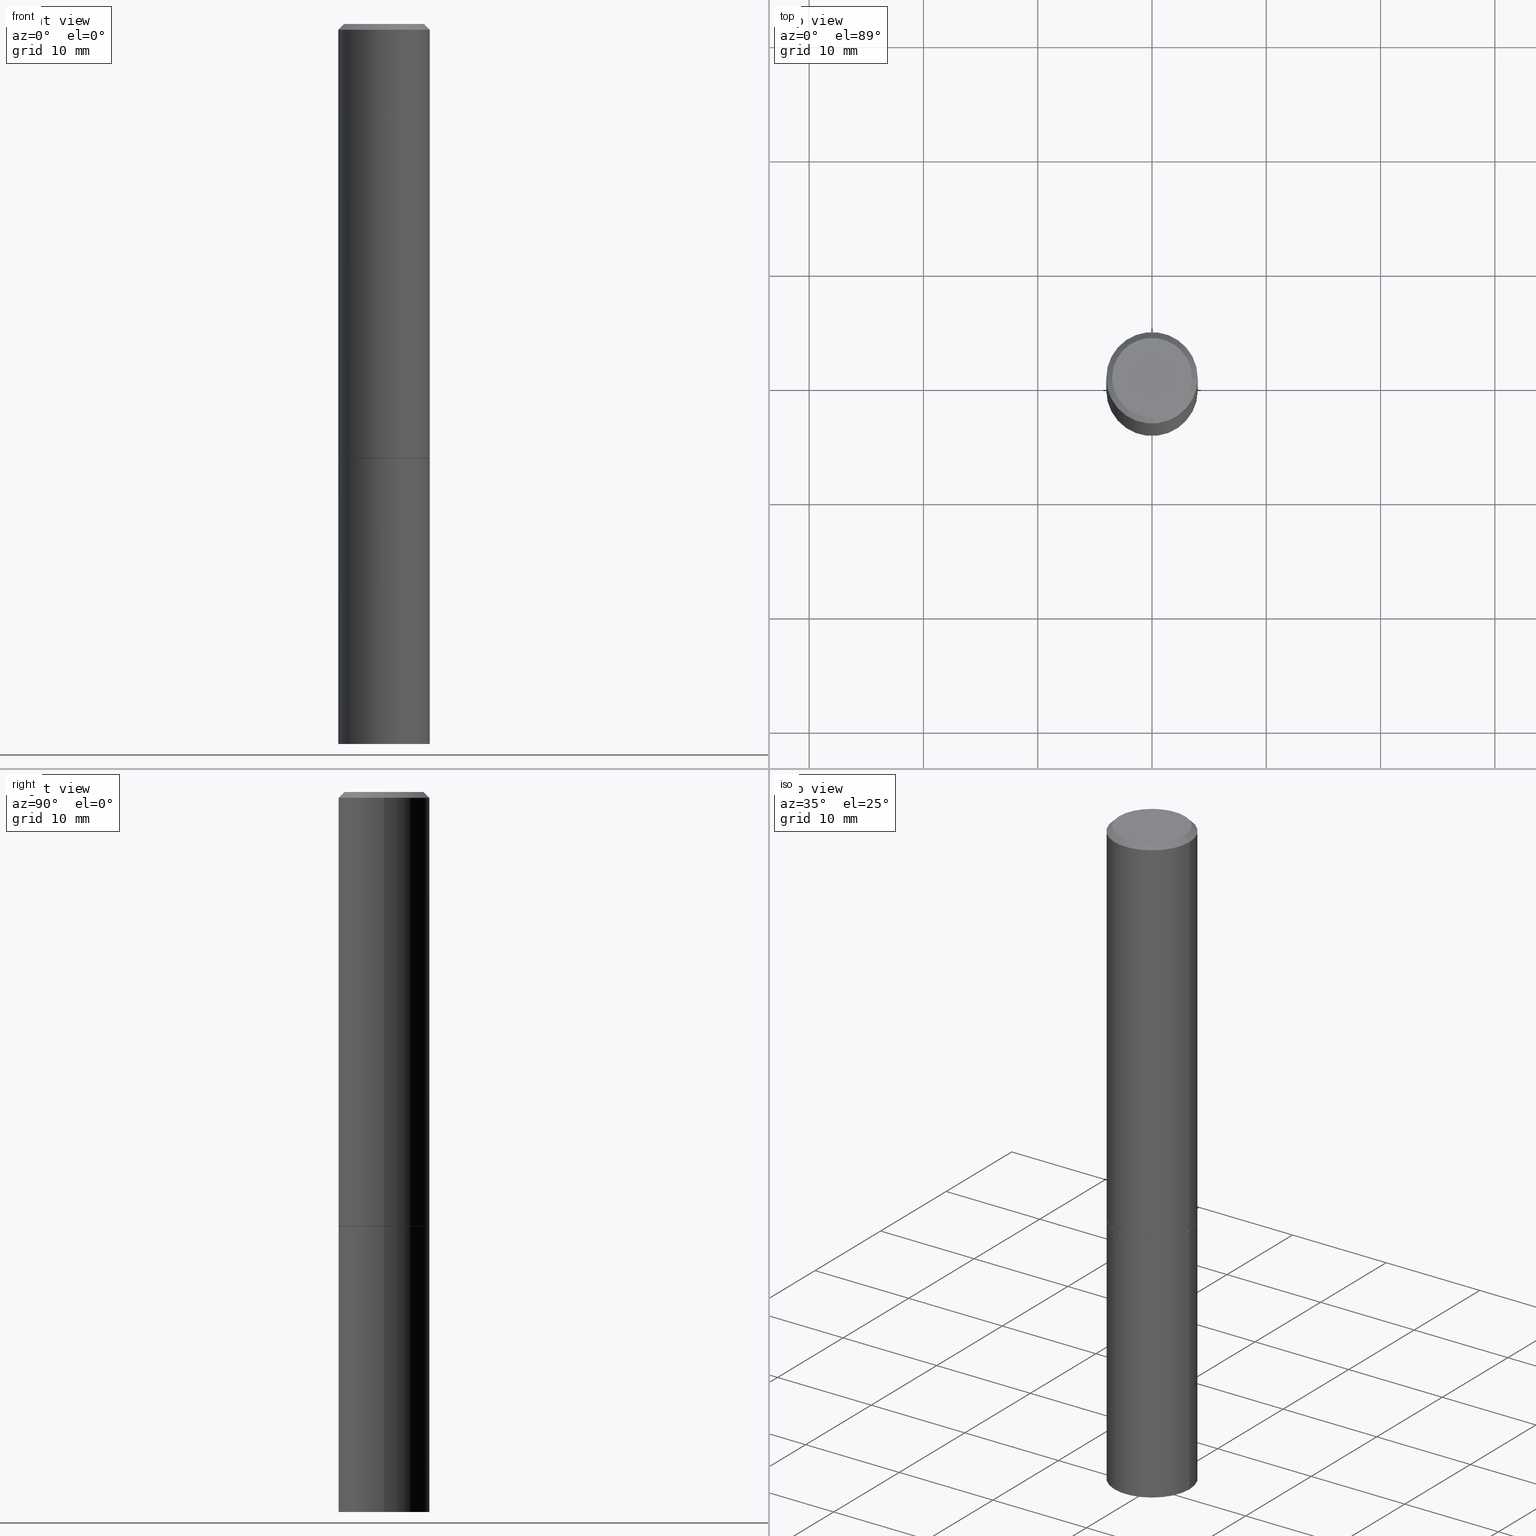
[diagram: canonical four-view strip — front | top / right | iso, engineering-drawing reading convention]
A machine part, canonical four-view strip (front | top / right | iso — engineering-drawing reading convention). The complete STEP part file that produces these views, byte-faithful:
ISO-10303-21;
HEADER;
FILE_DESCRIPTION (( 'STEP AP203' ),
    '1' );
FILE_NAME ('82968.STEP',
    '2024-02-29T19:28:35',
    ( '' ),
    ( '' ),
    'SwSTEP 2.0',
    'SolidWorks 2023',
    '' );
FILE_SCHEMA (( 'CONFIG_CONTROL_DESIGN' ));
ENDSEC;

DATA;
#1 = ORIENTED_EDGE ( 'NONE', *, *, #342, .F. ) ;
#2 = APPROVAL_PERSON_ORGANIZATION ( #61, #335, #258 ) ;
#3 = ADVANCED_FACE ( 'NONE', ( #218 ), #29, .T. ) ;
#4 = CALENDAR_DATE ( 2024, 29, 2 ) ;
#5 = CARTESIAN_POINT ( 'NONE',  ( 1.099816621735623373E-15, 0.1574999999999947553, -1.496000000000000885 ) ) ;
#6 = ORIENTED_EDGE ( 'NONE', *, *, #168, .T. ) ;
#7 = PERSON_AND_ORGANIZATION_ROLE ( 'design_supplier' ) ;
#8 = EDGE_CURVE ( 'NONE', #208, #77, #256, .T. ) ;
#9 = DATE_TIME_ROLE ( 'creation_date' ) ;
#10 = SECURITY_CLASSIFICATION ( '', '', #222 ) ;
#11 = DIRECTION ( 'NONE',  ( -2.445468806185136597E-29, 3.491481338843145583E-15, 1.000000000000000000 ) ) ;
#12 = DIRECTION ( 'NONE',  ( -2.445468806185136877E-29, 3.491481338843145188E-15, 1.000000000000000000 ) ) ;
#13 = AXIS2_PLACEMENT_3D ( 'NONE', #237, #212, #291 ) ;
#14 = APPROVAL ( #195, 'UNSPECIFIED' ) ;
#15 = ORIENTED_EDGE ( 'NONE', *, *, #119, .T. ) ;
#16 = CARTESIAN_POINT ( 'NONE',  ( 3.658421334052965846E-29, -5.223256082909347726E-15, -1.496000000000000663 ) ) ;
#17 = ORIENTED_EDGE ( 'NONE', *, *, #128, .F. ) ;
#18 = CC_DESIGN_PERSON_AND_ORGANIZATION_ASSIGNMENT ( #233, #255, ( #278 ) ) ;
#19 = CYLINDRICAL_SURFACE ( 'NONE', #295, 0.1574999999999998901 ) ;
#20 = PRODUCT ( '82968', '82968', '', ( #216 ) ) ;
#21 = APPROVAL_PERSON_ORGANIZATION ( #73, #205, #275 ) ;
#22 = VERTEX_POINT ( 'NONE', #106 ) ;
#23 = UNCERTAINTY_MEASURE_WITH_UNIT (LENGTH_MEASURE( 1.000000000000000082E-05 ), #65, 'distance_accuracy_value', 'NONE');
#24 = CARTESIAN_POINT ( 'NONE',  ( 0.000000000000000000, 0.000000000000000000, 0.000000000000000000 ) ) ;
#25 = VERTEX_POINT ( 'NONE', #79 ) ;
#26 = AXIS2_PLACEMENT_3D ( 'NONE', #320, #286, #173 ) ;
#27 = DIRECTION ( 'NONE',  ( -2.445468806185136597E-29, 3.491481338843145583E-15, 1.000000000000000000 ) ) ;
#28 = CC_DESIGN_APPROVAL ( #14, ( #109 ) ) ;
#29 = CYLINDRICAL_SURFACE ( 'NONE', #229, 0.1575000000000000011 ) ;
#30 = EDGE_CURVE ( 'NONE', #331, #243, #254, .T. ) ;
#31 = CONICAL_SURFACE ( 'NONE', #59, 0.1574999999999998346, 0.7853981633974471688 ) ;
#32 = LOCAL_TIME ( 14, 28, 35.00000000000000000, #288 ) ;
#33 = DIRECTION ( 'NONE',  ( 1.000000000000000000, -6.982962677686266711E-15, 4.876176775795935793E-29 ) ) ;
#34 = CARTESIAN_POINT ( 'NONE',  ( -0.1374999999999998446, 9.950721815702915469E-16, 8.537024980193986277E-18 ) ) ;
#35 = EDGE_CURVE ( 'NONE', #131, #22, #326, .T. ) ;
#36 = CARTESIAN_POINT ( 'NONE',  ( 3.658421334052965286E-29, -5.223256082909346937E-15, -1.496000000000000441 ) ) ;
#37 = AXIS2_PLACEMENT_3D ( 'NONE', #150, #299, #48 ) ;
#38 = DIRECTION ( 'NONE',  ( -2.445468806185136877E-29, 3.491481338843145188E-15, 1.000000000000000000 ) ) ;
#39 = PERSON_AND_ORGANIZATION_ROLE ( 'creator' ) ;
#40 = LINE ( 'NONE', #89, #124 ) ;
#41 = FACE_OUTER_BOUND ( 'NONE', #98, .T. ) ;
#42 = CC_DESIGN_PERSON_AND_ORGANIZATION_ASSIGNMENT ( #227, #341, ( #10 ) ) ;
#43 = CARTESIAN_POINT ( 'NONE',  ( 4.890937612370281041E-31, -6.982962677686302702E-17, -0.02000000000000003511 ) ) ;
#44 = CARTESIAN_POINT ( 'NONE',  ( 0.1575000000000000011, -6.323072704644934417E-15, -1.496000000000000441 ) ) ;
#45 = ORIENTED_EDGE ( 'NONE', *, *, #265, .T. ) ;
#46 = CARTESIAN_POINT ( 'NONE',  ( 0.1574999999999998901, -1.099816621735586297E-15, 7.679978421878593829E-30 ) ) ;
#47 = ADVANCED_FACE ( 'NONE', ( #200 ), #203, .F. ) ;
#48 = DIRECTION ( 'NONE',  ( 1.000000000000000000, -6.982962677686268288E-15, 0.000000000000000000 ) ) ;
#49 = ORIENTED_EDGE ( 'NONE', *, *, #30, .T. ) ;
#50 = FACE_OUTER_BOUND ( 'NONE', #274, .T. ) ;
#51 = APPLICATION_CONTEXT ( 'configuration controlled 3d designs of mechanical parts and assemblies' ) ;
#52 = ORIENTED_EDGE ( 'NONE', *, *, #35, .T. ) ;
#53 = EDGE_LOOP ( 'NONE', ( #362, #70, #1, #188 ) ) ;
#54 = CARTESIAN_POINT ( 'NONE',  ( -2.087702828670439639E-46, 2.980686340760894400E-32, 8.537024980200822558E-18 ) ) ;
#55 = LOCAL_TIME ( 14, 28, 35.00000000000000000, #318 ) ;
#56 = CC_DESIGN_DATE_AND_TIME_ASSIGNMENT ( #164, #284, ( #10 ) ) ;
#57 = PERSON_AND_ORGANIZATION ( #235, #186 ) ;
#58 = ORIENTED_EDGE ( 'NONE', *, *, #128, .T. ) ;
#59 = AXIS2_PLACEMENT_3D ( 'NONE', #148, #333, #155 ) ;
#60 =( GEOMETRIC_REPRESENTATION_CONTEXT ( 3 ) GLOBAL_UNCERTAINTY_ASSIGNED_CONTEXT ( ( #23 ) ) GLOBAL_UNIT_ASSIGNED_CONTEXT ( ( #65, #329, #351 ) ) REPRESENTATION_CONTEXT ( 'NONE', 'WORKASPACE' ) );
#61 = PERSON_AND_ORGANIZATION ( #235, #186 ) ;
#62 = CARTESIAN_POINT ( 'NONE',  ( 3.655975865246779683E-29, -5.219764601570503930E-15, -1.495000000000000329 ) ) ;
#63 = CIRCLE ( 'NONE', #204, 0.1575000000000000011 ) ;
#64 = CALENDAR_DATE ( 2024, 29, 2 ) ;
#65 =( CONVERSION_BASED_UNIT ( 'INCH', #261 ) LENGTH_UNIT ( ) NAMED_UNIT ( #158 ) );
#66 = CARTESIAN_POINT ( 'NONE',  ( 0.1565000000000000002, -6.316089741967248403E-15, -1.496000000000000663 ) ) ;
#67 = ORIENTED_EDGE ( 'NONE', *, *, #81, .T. ) ;
#68 = EDGE_CURVE ( 'NONE', #301, #131, #146, .T. ) ;
#69 = VERTEX_POINT ( 'NONE', #317 ) ;
#70 = ORIENTED_EDGE ( 'NONE', *, *, #107, .T. ) ;
#71 = CARTESIAN_POINT ( 'NONE',  ( 0.1574999999999998346, -1.150358061425878091E-15, -0.02000000000000003511 ) ) ;
#72 = ORIENTED_EDGE ( 'NONE', *, *, #342, .T. ) ;
#73 = PERSON_AND_ORGANIZATION ( #235, #186 ) ;
#74 = CONICAL_SURFACE ( 'NONE', #140, 0.1565000000000000002, 0.7853981633972775267 ) ;
#75 = AXIS2_PLACEMENT_3D ( 'NONE', #271, #206, #125 ) ;
#76 = CARTESIAN_POINT ( 'NONE',  ( 4.890937612370281041E-31, -6.982962677686302702E-17, -0.02000000000000003511 ) ) ;
#77 = VERTEX_POINT ( 'NONE', #34 ) ;
#78 = EDGE_CURVE ( 'NONE', #219, #301, #293, .T. ) ;
#79 = CARTESIAN_POINT ( 'NONE',  ( -0.1574999999999998346, 1.029986994958722604E-15, -0.02000000000000003511 ) ) ;
#80 = CARTESIAN_POINT ( 'NONE',  ( -0.1574999999999998346, 1.029986994958722604E-15, -0.02000000000000003511 ) ) ;
#81 = EDGE_CURVE ( 'NONE', #96, #25, #40, .T. ) ;
#82 = CLOSED_SHELL ( 'NONE', ( #287, #292, #175, #3 ) ) ;
#83 = EDGE_LOOP ( 'NONE', ( #267, #49, #224, #123 ) ) ;
#84 = COORDINATED_UNIVERSAL_TIME_OFFSET ( 5, 0, .BEHIND. ) ;
#85 = EDGE_CURVE ( 'NONE', #22, #131, #91, .T. ) ;
#86 = CALENDAR_DATE ( 2024, 29, 2 ) ;
#87 = CARTESIAN_POINT ( 'NONE',  ( 6.065496279980994755E-29, -8.659921164732655335E-15, -2.480300000000000171 ) ) ;
#88 = DATE_AND_TIME ( #86, #32 ) ;
#89 = CARTESIAN_POINT ( 'NONE',  ( -0.1574999999999998901, 1.119104808822157012E-15, -7.747322767151471379E-30 ) ) ;
#90 = FACE_OUTER_BOUND ( 'NONE', #298, .T. ) ;
#91 = CIRCLE ( 'NONE', #177, 0.1575000000000000011 ) ;
#92 = FACE_OUTER_BOUND ( 'NONE', #121, .T. ) ;
#93 = EDGE_CURVE ( 'NONE', #96, #69, #63, .T. ) ;
#94 = DIRECTION ( 'NONE',  ( -2.445468806185136597E-29, 3.491481338843145583E-15, 1.000000000000000000 ) ) ;
#95 = MANIFOLD_SOLID_BREP ( 'Body-Move/Copy2[2]', #244 ) ;
#96 = VERTEX_POINT ( 'NONE', #152 ) ;
#97 = DIRECTION ( 'NONE',  ( 1.000000000000000000, -6.982962677686265922E-15, 4.876176775795935793E-29 ) ) ;
#98 = EDGE_LOOP ( 'NONE', ( #6, #151, #211, #101 ) ) ;
#99 = CARTESIAN_POINT ( 'NONE',  ( -0.1565000000000000002, -4.105958247096567940E-15, -1.496000000000000663 ) ) ;
#100 = CARTESIAN_POINT ( 'NONE',  ( -0.1565000000000000002, -4.111256701444791131E-15, -1.496000000000000663 ) ) ;
#101 = ORIENTED_EDGE ( 'NONE', *, *, #68, .F. ) ;
#102 = ORIENTED_EDGE ( 'NONE', *, *, #68, .T. ) ;
#103 = AXIS2_PLACEMENT_3D ( 'NONE', #187, #294, #300 ) ;
#104 = CONICAL_SURFACE ( 'NONE', #270, 0.1565000000000000002, 0.7853981633972775267 ) ;
#105 = EDGE_LOOP ( 'NONE', ( #311, #328, #102, #183 ) ) ;
#106 = CARTESIAN_POINT ( 'NONE',  ( -0.1575000000000000011, -5.822483814998842744E-15, -1.496000000000000441 ) ) ;
#107 = EDGE_CURVE ( 'NONE', #331, #96, #213, .T. ) ;
#108 = DIRECTION ( 'NONE',  ( 1.000000000000000000, -6.982962677686267499E-15, 0.000000000000000000 ) ) ;
#109 = PRODUCT_DEFINITION_FORMATION_WITH_SPECIFIED_SOURCE ( 'ANY', '', #20, .NOT_KNOWN. ) ;
#110 = DATE_AND_TIME ( #4, #55 ) ;
#111 = ADVANCED_FACE ( 'NONE', ( #323 ), #31, .T. ) ;
#112 = AXIS2_PLACEMENT_3D ( 'NONE', #257, #225, #260 ) ;
#113 = LOCAL_TIME ( 14, 28, 35.00000000000000000, #142 ) ;
#114 = DIRECTION ( 'NONE',  ( 1.000000000000000000, -6.982962677686261977E-15, 0.000000000000000000 ) ) ;
#115 = ADVANCED_FACE ( 'NONE', ( #242 ), #74, .T. ) ;
#116 = DIRECTION ( 'NONE',  ( -2.445468806185136597E-29, 3.491481338843145583E-15, 1.000000000000000000 ) ) ;
#117 = AXIS2_PLACEMENT_3D ( 'NONE', #5, #170, #259 ) ;
#118 = DIRECTION ( 'NONE',  ( -2.445468806185136597E-29, 3.491481338843145583E-15, 1.000000000000000000 ) ) ;
#119 = EDGE_CURVE ( 'NONE', #153, #25, #160, .T. ) ;
#120 = DIRECTION ( 'NONE',  ( 2.438088387897960049E-29, -3.491481338843145188E-15, -1.000000000000000000 ) ) ;
#121 = EDGE_LOOP ( 'NONE', ( #249, #272, #15, #364 ) ) ;
#122 = LINE ( 'NONE', #66, #171 ) ;
#123 = ORIENTED_EDGE ( 'NONE', *, *, #93, .F. ) ;
#124 = VECTOR ( 'NONE', #38, 39.37007874015748143 ) ;
#125 = DIRECTION ( 'NONE',  ( 1.000000000000000000, -6.982962677686265922E-15, 0.000000000000000000 ) ) ;
#126 = DIRECTION ( 'NONE',  ( -0.7071067811864267805, 7.493145998869918709E-15, 0.7071067811866682540 ) ) ;
#127 = CARTESIAN_POINT ( 'NONE',  ( 0.1565000000000000002, -6.316089741967248403E-15, -1.496000000000000663 ) ) ;
#128 = EDGE_CURVE ( 'NONE', #77, #208, #280, .T. ) ;
#129 = ORIENTED_EDGE ( 'NONE', *, *, #78, .F. ) ;
#130 = DIRECTION ( 'NONE',  ( -0.7071067811865466846, 2.468850131082247989E-15, -0.7071067811865483499 ) ) ;
#131 = VERTEX_POINT ( 'NONE', #44 ) ;
#132 = CIRCLE ( 'NONE', #282, 0.1575000000000000011 ) ;
#133 = DIRECTION ( 'NONE',  ( 1.000000000000000000, -6.982962677686265922E-15, 4.876173381029105647E-29 ) ) ;
#134 = EDGE_CURVE ( 'NONE', #77, #25, #207, .T. ) ;
#135 = AXIS2_PLACEMENT_3D ( 'NONE', #307, #194, #336 ) ;
#136 = APPROVAL_STATUS ( 'not_yet_approved' ) ;
#137 = ADVANCED_FACE ( 'NONE', ( #310 ), #104, .T. ) ;
#138 = DIRECTION ( 'NONE',  ( 1.000000000000000000, -6.982962677686261977E-15, 0.000000000000000000 ) ) ;
#139 = DIRECTION ( 'NONE',  ( 1.000000000000000000, -6.982962677686268288E-15, 0.000000000000000000 ) ) ;
#140 = AXIS2_PLACEMENT_3D ( 'NONE', #357, #248, #354 ) ;
#141 = LOCAL_TIME ( 14, 28, 35.00000000000000000, #84 ) ;
#142 = COORDINATED_UNIVERSAL_TIME_OFFSET ( 5, 0, .BEHIND. ) ;
#143 = CARTESIAN_POINT ( 'NONE',  ( 0.000000000000000000, 0.000000000000000000, 0.000000000000000000 ) ) ;
#144 = DESIGN_CONTEXT ( 'detailed design', #51, 'design' ) ;
#145 = CC_DESIGN_PERSON_AND_ORGANIZATION_ASSIGNMENT ( #338, #163, ( #20 ) ) ;
#146 = LINE ( 'NONE', #349, #184 ) ;
#147 = CARTESIAN_POINT ( 'NONE',  ( 1.099816621735647434E-15, 0.1574999999999913136, -2.480300000000001059 ) ) ;
#148 = CARTESIAN_POINT ( 'NONE',  ( 4.890937612370281041E-31, -6.982962677686302702E-17, -0.02000000000000003511 ) ) ;
#149 = EDGE_LOOP ( 'NONE', ( #52, #268 ) ) ;
#150 = CARTESIAN_POINT ( 'NONE',  ( 3.655975865246779683E-29, -5.219764601570503930E-15, -1.495000000000000329 ) ) ;
#151 = ORIENTED_EDGE ( 'NONE', *, *, #303, .T. ) ;
#152 = CARTESIAN_POINT ( 'NONE',  ( -0.1575000000000000011, -1.525692305351524236E-15, -1.495000000000000329 ) ) ;
#153 = VERTEX_POINT ( 'NONE', #221 ) ;
#154 = PRODUCT_DEFINITION_SHAPE ( 'NONE', 'NONE',  #278 ) ;
#155 = DIRECTION ( 'NONE',  ( -1.000000000000000000, 6.982962677686265922E-15, 0.000000000000000000 ) ) ;
#156 = ORIENTED_EDGE ( 'NONE', *, *, #199, .F. ) ;
#157 = ORIENTED_EDGE ( 'NONE', *, *, #30, .F. ) ;
#158 = DIMENSIONAL_EXPONENTS ( 1.000000000000000000, 0.000000000000000000, 0.000000000000000000, 0.000000000000000000, 0.000000000000000000, 0.000000000000000000, 0.000000000000000000 ) ;
#159 = EDGE_CURVE ( 'NONE', #243, #331, #337, .T. ) ;
#160 = CIRCLE ( 'NONE', #339, 0.1574999999999998346 ) ;
#161 = CALENDAR_DATE ( 2024, 29, 2 ) ;
#162 = CARTESIAN_POINT ( 'NONE',  ( 3.658421334052965846E-29, -5.223256082909347726E-15, -1.496000000000000663 ) ) ;
#163 = PERSON_AND_ORGANIZATION_ROLE ( 'design_owner' ) ;
#164 = DATE_AND_TIME ( #313, #141 ) ;
#165 = ADVANCED_FACE ( 'NONE', ( #365 ), #196, .T. ) ;
#166 = AXIS2_PLACEMENT_3D ( 'NONE', #16, #245, #97 ) ;
#167 = DIRECTION ( 'NONE',  ( -2.445468806185136597E-29, 3.491481338843145583E-15, 1.000000000000000000 ) ) ;
#168 = EDGE_CURVE ( 'NONE', #301, #219, #132, .T. ) ;
#169 = APPROVAL_DATE_TIME ( #110, #335 ) ;
#170 = DIRECTION ( 'NONE',  ( 2.438088387897960049E-29, -3.491481338843145188E-15, -1.000000000000000000 ) ) ;
#171 = VECTOR ( 'NONE', #210, 39.37007874015748143 ) ;
#172 = APPROVAL_ROLE ( '' ) ;
#173 = DIRECTION ( 'NONE',  ( -1.000000000000000000, 6.982962677686265922E-15, -4.876176775795935793E-29 ) ) ;
#174 = CYLINDRICAL_SURFACE ( 'NONE', #13, 0.1575000000000000011 ) ;
#175 = ADVANCED_FACE ( 'NONE', ( #234 ), #231, .F. ) ;
#176 = ORIENTED_EDGE ( 'NONE', *, *, #265, .F. ) ;
#177 = AXIS2_PLACEMENT_3D ( 'NONE', #36, #167, #139 ) ;
#178 = LOCAL_TIME ( 14, 28, 35.00000000000000000, #305 ) ;
#179 = CARTESIAN_POINT ( 'NONE',  ( -0.1575000000000000011, 1.119104808822157801E-15, -7.747322767151475583E-30 ) ) ;
#180 = ORIENTED_EDGE ( 'NONE', *, *, #93, .T. ) ;
#181 = DIRECTION ( 'NONE',  ( -1.000000000000000000, 6.982962677686265922E-15, 0.000000000000000000 ) ) ;
#182 = CC_DESIGN_PERSON_AND_ORGANIZATION_ASSIGNMENT ( #281, #7, ( #109 ) ) ;
#183 = ORIENTED_EDGE ( 'NONE', *, *, #85, .F. ) ;
#184 = VECTOR ( 'NONE', #262, 39.37007874015748143 ) ;
#185 = CC_DESIGN_APPROVAL ( #205, ( #278 ) ) ;
#186 = ORGANIZATION ( 'UNSPECIFIED', 'UNSPECIFIED', '' ) ;
#187 = CARTESIAN_POINT ( 'NONE',  ( -2.087702828670439639E-46, 2.980686340760894400E-32, 8.537024980200822558E-18 ) ) ;
#188 = ORIENTED_EDGE ( 'NONE', *, *, #348, .F. ) ;
#189 = APPROVAL_STATUS ( 'not_yet_approved' ) ;
#190 = ADVANCED_FACE ( 'NONE', ( #90 ), #19, .T. ) ;
#191 = CARTESIAN_POINT ( 'NONE',  ( 0.000000000000000000, 0.000000000000000000, 0.000000000000000000 ) ) ;
#192 = AXIS2_PLACEMENT_3D ( 'NONE', #43, #322, #181 ) ;
#193 = DIRECTION ( 'NONE',  ( -2.445468806185136597E-29, 3.491481338843145583E-15, 1.000000000000000000 ) ) ;
#194 = DIRECTION ( 'NONE',  ( 0.000000000000000000, 0.000000000000000000, 1.000000000000000000 ) ) ;
#195 = APPROVAL_STATUS ( 'not_yet_approved' ) ;
#196 = CYLINDRICAL_SURFACE ( 'NONE', #277, 0.1574999999999998901 ) ;
#197 = EDGE_LOOP ( 'NONE', ( #217, #129 ) ) ;
#198 = CIRCLE ( 'NONE', #75, 0.1574999999999998346 ) ;
#199 = EDGE_CURVE ( 'NONE', #208, #153, #241, .T. ) ;
#200 = FACE_OUTER_BOUND ( 'NONE', #239, .T. ) ;
#201 = PERSON_AND_ORGANIZATION ( #235, #186 ) ;
#202 = DIRECTION ( 'NONE',  ( 1.000000000000000000, -6.982962677686268288E-15, 0.000000000000000000 ) ) ;
#203 = PLANE ( 'NONE',  #26 ) ;
#204 = AXIS2_PLACEMENT_3D ( 'NONE', #62, #11, #327 ) ;
#205 = APPROVAL ( #189, 'UNSPECIFIED' ) ;
#206 = DIRECTION ( 'NONE',  ( -2.445468806185136597E-29, 3.491481338843145583E-15, 1.000000000000000000 ) ) ;
#207 = LINE ( 'NONE', #80, #314 ) ;
#208 = VERTEX_POINT ( 'NONE', #356 ) ;
#209 = AXIS2_PLACEMENT_3D ( 'NONE', #312, #279, #223 ) ;
#210 = DIRECTION ( 'NONE',  ( 0.7071067811864267805, -2.468850131080992517E-15, 0.7071067811866682540 ) ) ;
#211 = ORIENTED_EDGE ( 'NONE', *, *, #35, .F. ) ;
#212 = DIRECTION ( 'NONE',  ( -2.445468806185136597E-29, 3.491481338843145583E-15, 1.000000000000000000 ) ) ;
#213 = LINE ( 'NONE', #100, #269 ) ;
#214 =( LENGTH_UNIT ( ) NAMED_UNIT ( * ) SI_UNIT ( $, .METRE. ) );
#215 = AXIS2_PLACEMENT_3D ( 'NONE', #147, #120, #266 ) ;
#216 = MECHANICAL_CONTEXT ( 'NONE', #346, 'mechanical' ) ;
#217 = ORIENTED_EDGE ( 'NONE', *, *, #168, .F. ) ;
#218 = FACE_OUTER_BOUND ( 'NONE', #105, .T. ) ;
#219 = VERTEX_POINT ( 'NONE', #360 ) ;
#220 = VECTOR ( 'NONE', #12, 39.37007874015748143 ) ;
#221 = CARTESIAN_POINT ( 'NONE',  ( 0.1574999999999998346, -1.150358061425878091E-15, -0.02000000000000003511 ) ) ;
#222 = SECURITY_CLASSIFICATION_LEVEL ( 'unclassified' ) ;
#223 = DIRECTION ( 'NONE',  ( 1.000000000000000000, -6.982962677686267499E-15, 0.000000000000000000 ) ) ;
#224 = ORIENTED_EDGE ( 'NONE', *, *, #348, .T. ) ;
#225 = DIRECTION ( 'NONE',  ( -2.445468806185136597E-29, 3.491481338843145583E-15, 1.000000000000000000 ) ) ;
#226 = EDGE_CURVE ( 'NONE', #25, #153, #198, .T. ) ;
#227 = PERSON_AND_ORGANIZATION ( #235, #186 ) ;
#228 = DIRECTION ( 'NONE',  ( -2.445468806185136597E-29, 3.491481338843145583E-15, 1.000000000000000000 ) ) ;
#229 = AXIS2_PLACEMENT_3D ( 'NONE', #191, #193, #306 ) ;
#230 = DATE_AND_TIME ( #64, #113 ) ;
#231 = PLANE ( 'NONE',  #117 ) ;
#232 = CARTESIAN_POINT ( 'NONE',  ( 6.065496279980994755E-29, -8.659921164732655335E-15, -2.480300000000000171 ) ) ;
#233 = PERSON_AND_ORGANIZATION ( #235, #186 ) ;
#234 = FACE_OUTER_BOUND ( 'NONE', #149, .T. ) ;
#235 = PERSON ( 'UNSPECIFIED', 'UNSPECIFIED', 'UNSPECIFIED', ('UNSPECIFIED'), ('UNSPECIFIED'), ('UNSPECIFIED') ) ;
#236 = CC_DESIGN_APPROVAL ( #335, ( #10 ) ) ;
#237 = CARTESIAN_POINT ( 'NONE',  ( 0.000000000000000000, 0.000000000000000000, 0.000000000000000000 ) ) ;
#238 = DIRECTION ( 'NONE',  ( 0.7071067811865466846, -7.319954787623252890E-15, -0.7071067811865483499 ) ) ;
#239 = EDGE_LOOP ( 'NONE', ( #58, #324 ) ) ;
#240 = ADVANCED_FACE ( 'NONE', ( #92 ), #366, .T. ) ;
#241 = LINE ( 'NONE', #71, #358 ) ;
#242 = FACE_OUTER_BOUND ( 'NONE', #83, .T. ) ;
#243 = VERTEX_POINT ( 'NONE', #127 ) ;
#244 = CLOSED_SHELL ( 'NONE', ( #137, #190, #240, #111, #165, #115, #273, #47 ) ) ;
#245 = DIRECTION ( 'NONE',  ( -2.438088387897960049E-29, 3.491481338843145188E-15, 1.000000000000000000 ) ) ;
#246 = ORIENTED_EDGE ( 'NONE', *, *, #159, .F. ) ;
#247 = CARTESIAN_POINT ( 'NONE',  ( 0.1575000000000000011, -9.759737786468242027E-15, -2.480300000000000171 ) ) ;
#248 = DIRECTION ( 'NONE',  ( -2.445468806185136597E-29, 3.491481338843145583E-15, 1.000000000000000000 ) ) ;
#249 = ORIENTED_EDGE ( 'NONE', *, *, #8, .F. ) ;
#250 = ORIENTED_EDGE ( 'NONE', *, *, #134, .T. ) ;
#251 = CC_DESIGN_PERSON_AND_ORGANIZATION_ASSIGNMENT ( #57, #39, ( #109 ) ) ;
#252 = DIRECTION ( 'NONE',  ( -2.445468806185136597E-29, 3.491481338843145583E-15, 1.000000000000000000 ) ) ;
#253 = APPLICATION_PROTOCOL_DEFINITION ( 'international standard', 'config_control_design', 1994, #51 ) ;
#254 = CIRCLE ( 'NONE', #112, 0.1565000000000000002 ) ;
#255 = PERSON_AND_ORGANIZATION_ROLE ( 'creator' ) ;
#256 = CIRCLE ( 'NONE', #285, 0.1374999999999998446 ) ;
#257 = CARTESIAN_POINT ( 'NONE',  ( 3.658421334052965846E-29, -5.223256082909347726E-15, -1.496000000000000663 ) ) ;
#258 = APPROVAL_ROLE ( '' ) ;
#259 = DIRECTION ( 'NONE',  ( -1.000000000000000000, 6.982962677686265922E-15, -4.876176775795935793E-29 ) ) ;
#260 = DIRECTION ( 'NONE',  ( 1.000000000000000000, -6.982962677686267499E-15, 0.000000000000000000 ) ) ;
#261 = LENGTH_MEASURE_WITH_UNIT ( LENGTH_MEASURE( 0.02539999999999999897 ), #214 );
#262 = DIRECTION ( 'NONE',  ( -2.445468806185136877E-29, 3.491481338843145188E-15, 1.000000000000000000 ) ) ;
#263 = APPROVAL_PERSON_ORGANIZATION ( #201, #14, #172 ) ;
#264 = EDGE_LOOP ( 'NONE', ( #359, #180, #45, #334 ) ) ;
#265 = EDGE_CURVE ( 'NONE', #69, #153, #302, .T. ) ;
#266 = DIRECTION ( 'NONE',  ( -1.000000000000000000, 6.982962677686265922E-15, -4.876176775795935793E-29 ) ) ;
#267 = ORIENTED_EDGE ( 'NONE', *, *, #107, .F. ) ;
#268 = ORIENTED_EDGE ( 'NONE', *, *, #85, .T. ) ;
#269 = VECTOR ( 'NONE', #126, 39.37007874015748143 ) ;
#270 = AXIS2_PLACEMENT_3D ( 'NONE', #162, #252, #108 ) ;
#271 = CARTESIAN_POINT ( 'NONE',  ( 4.890937612370281041E-31, -6.982962677686302702E-17, -0.02000000000000003511 ) ) ;
#272 = ORIENTED_EDGE ( 'NONE', *, *, #199, .T. ) ;
#273 = ADVANCED_FACE ( 'NONE', ( #50 ), #325, .F. ) ;
#274 = EDGE_LOOP ( 'NONE', ( #246, #157 ) ) ;
#275 = APPROVAL_ROLE ( '' ) ;
#276 = ADVANCED_BREP_SHAPE_REPRESENTATION ( '82968', ( #352, #95, #135 ), #60 ) ;
#277 = AXIS2_PLACEMENT_3D ( 'NONE', #143, #228, #33 ) ;
#278 = PRODUCT_DEFINITION ( 'UNKNOWN', '', #109, #144 ) ;
#279 = DIRECTION ( 'NONE',  ( -2.445468806185136597E-29, 3.491481338843145583E-15, 1.000000000000000000 ) ) ;
#280 = CIRCLE ( 'NONE', #103, 0.1374999999999998446 ) ;
#281 = PERSON_AND_ORGANIZATION ( #235, #186 ) ;
#282 = AXIS2_PLACEMENT_3D ( 'NONE', #87, #319, #114 ) ;
#283 = APPROVAL_DATE_TIME ( #315, #205 ) ;
#284 = DATE_TIME_ROLE ( 'classification_date' ) ;
#285 = AXIS2_PLACEMENT_3D ( 'NONE', #54, #27, #133 ) ;
#286 = DIRECTION ( 'NONE',  ( 2.438088387897960049E-29, -3.491481338843145188E-15, -1.000000000000000000 ) ) ;
#287 = ADVANCED_FACE ( 'NONE', ( #41 ), #174, .T. ) ;
#288 = COORDINATED_UNIVERSAL_TIME_OFFSET ( 5, 0, .BEHIND. ) ;
#289 = DIRECTION ( 'NONE',  ( -2.445468806185136597E-29, 3.491481338843145583E-15, 1.000000000000000000 ) ) ;
#290 = FACE_OUTER_BOUND ( 'NONE', #197, .T. ) ;
#291 = DIRECTION ( 'NONE',  ( 1.000000000000000000, -6.982962677686265922E-15, 4.876176775795935232E-29 ) ) ;
#292 = ADVANCED_FACE ( 'NONE', ( #290 ), #353, .T. ) ;
#293 = CIRCLE ( 'NONE', #344, 0.1575000000000000011 ) ;
#294 = DIRECTION ( 'NONE',  ( -2.445468806185136597E-29, 3.491481338843145583E-15, 1.000000000000000000 ) ) ;
#295 = AXIS2_PLACEMENT_3D ( 'NONE', #24, #94, #332 ) ;
#296 = ORIENTED_EDGE ( 'NONE', *, *, #119, .F. ) ;
#297 = DIRECTION ( 'NONE',  ( -2.445468806185136877E-29, 3.491481338843145188E-15, 1.000000000000000000 ) ) ;
#298 = EDGE_LOOP ( 'NONE', ( #72, #67, #296, #176 ) ) ;
#299 = DIRECTION ( 'NONE',  ( -2.445468806185136597E-29, 3.491481338843145583E-15, 1.000000000000000000 ) ) ;
#300 = DIRECTION ( 'NONE',  ( 1.000000000000000000, -6.982962677686265922E-15, 4.876173381029105647E-29 ) ) ;
#301 = VERTEX_POINT ( 'NONE', #247 ) ;
#302 = LINE ( 'NONE', #46, #220 ) ;
#303 = EDGE_CURVE ( 'NONE', #219, #22, #363, .T. ) ;
#304 = ORIENTED_EDGE ( 'NONE', *, *, #226, .T. ) ;
#305 = COORDINATED_UNIVERSAL_TIME_OFFSET ( 5, 0, .BEHIND. ) ;
#306 = DIRECTION ( 'NONE',  ( 1.000000000000000000, -6.982962677686265922E-15, 4.876176775795935232E-29 ) ) ;
#307 = CARTESIAN_POINT ( 'NONE',  ( 0.000000000000000000, 0.000000000000000000, 0.000000000000000000 ) ) ;
#308 = AXIS2_PLACEMENT_3D ( 'NONE', #347, #116, #202 ) ;
#309 = CIRCLE ( 'NONE', #37, 0.1575000000000000011 ) ;
#310 = FACE_OUTER_BOUND ( 'NONE', #53, .T. ) ;
#311 = ORIENTED_EDGE ( 'NONE', *, *, #303, .F. ) ;
#312 = CARTESIAN_POINT ( 'NONE',  ( 3.658421334052965846E-29, -5.223256082909347726E-15, -1.496000000000000663 ) ) ;
#313 = CALENDAR_DATE ( 2024, 29, 2 ) ;
#314 = VECTOR ( 'NONE', #130, 39.37007874015748143 ) ;
#315 = DATE_AND_TIME ( #161, #178 ) ;
#316 = CC_DESIGN_SECURITY_CLASSIFICATION ( #10, ( #109 ) ) ;
#317 = CARTESIAN_POINT ( 'NONE',  ( 0.1575000000000000011, -6.319581223306091410E-15, -1.495000000000000329 ) ) ;
#318 = COORDINATED_UNIVERSAL_TIME_OFFSET ( 5, 0, .BEHIND. ) ;
#319 = DIRECTION ( 'NONE',  ( -2.445468806185136597E-29, 3.491481338843145583E-15, 1.000000000000000000 ) ) ;
#320 = CARTESIAN_POINT ( 'NONE',  ( 9.601573681818602922E-16, 0.1374999999999998446, -4.758101716008314943E-16 ) ) ;
#321 = CC_DESIGN_DATE_AND_TIME_ASSIGNMENT ( #230, #9, ( #278 ) ) ;
#322 = DIRECTION ( 'NONE',  ( 2.445468806185136597E-29, -3.491481338843145583E-15, -1.000000000000000000 ) ) ;
#323 = FACE_OUTER_BOUND ( 'NONE', #355, .T. ) ;
#324 = ORIENTED_EDGE ( 'NONE', *, *, #8, .T. ) ;
#325 = PLANE ( 'NONE',  #166 ) ;
#326 = CIRCLE ( 'NONE', #308, 0.1575000000000000011 ) ;
#327 = DIRECTION ( 'NONE',  ( 1.000000000000000000, -6.982962677686268288E-15, 0.000000000000000000 ) ) ;
#328 = ORIENTED_EDGE ( 'NONE', *, *, #78, .T. ) ;
#329 =( NAMED_UNIT ( * ) PLANE_ANGLE_UNIT ( ) SI_UNIT ( $, .RADIAN. ) );
#330 = DIRECTION ( 'NONE',  ( 1.000000000000000000, -6.982962677686265922E-15, 0.000000000000000000 ) ) ;
#331 = VERTEX_POINT ( 'NONE', #99 ) ;
#332 = DIRECTION ( 'NONE',  ( 1.000000000000000000, -6.982962677686266711E-15, 4.876176775795935793E-29 ) ) ;
#333 = DIRECTION ( 'NONE',  ( 2.445468806185136597E-29, -3.491481338843145583E-15, -1.000000000000000000 ) ) ;
#334 = ORIENTED_EDGE ( 'NONE', *, *, #226, .F. ) ;
#335 = APPROVAL ( #136, 'UNSPECIFIED' ) ;
#336 = DIRECTION ( 'NONE',  ( 1.000000000000000000, 0.000000000000000000, 0.000000000000000000 ) ) ;
#337 = CIRCLE ( 'NONE', #209, 0.1565000000000000002 ) ;
#338 = PERSON_AND_ORGANIZATION ( #235, #186 ) ;
#339 = AXIS2_PLACEMENT_3D ( 'NONE', #76, #118, #330 ) ;
#340 = APPLICATION_PROTOCOL_DEFINITION ( 'international standard', 'config_control_design', 1994, #346 ) ;
#341 = PERSON_AND_ORGANIZATION_ROLE ( 'classification_officer' ) ;
#342 = EDGE_CURVE ( 'NONE', #69, #96, #309, .T. ) ;
#343 = APPROVAL_DATE_TIME ( #88, #14 ) ;
#344 = AXIS2_PLACEMENT_3D ( 'NONE', #232, #289, #138 ) ;
#345 = SHAPE_DEFINITION_REPRESENTATION ( #154, #276 ) ;
#346 = APPLICATION_CONTEXT ( 'configuration controlled 3d designs of mechanical parts and assemblies' ) ;
#347 = CARTESIAN_POINT ( 'NONE',  ( 3.658421334052965286E-29, -5.223256082909346937E-15, -1.496000000000000441 ) ) ;
#348 = EDGE_CURVE ( 'NONE', #243, #69, #122, .T. ) ;
#349 = CARTESIAN_POINT ( 'NONE',  ( 0.1575000000000000011, -1.099816621735586889E-15, 7.679978421878598033E-30 ) ) ;
#350 = VECTOR ( 'NONE', #297, 39.37007874015748143 ) ;
#351 =( NAMED_UNIT ( * ) SI_UNIT ( $, .STERADIAN. ) SOLID_ANGLE_UNIT ( ) );
#352 = MANIFOLD_SOLID_BREP ( 'Body-Move/Copy2[1]', #82 ) ;
#353 = PLANE ( 'NONE',  #215 ) ;
#354 = DIRECTION ( 'NONE',  ( 1.000000000000000000, -6.982962677686267499E-15, 0.000000000000000000 ) ) ;
#355 = EDGE_LOOP ( 'NONE', ( #156, #17, #250, #304 ) ) ;
#356 = CARTESIAN_POINT ( 'NONE',  ( 0.1374999999999998446, -1.046838268059731308E-15, 8.537024980207840646E-18 ) ) ;
#357 = CARTESIAN_POINT ( 'NONE',  ( 3.658421334052965846E-29, -5.223256082909347726E-15, -1.496000000000000663 ) ) ;
#358 = VECTOR ( 'NONE', #238, 39.37007874015748143 ) ;
#359 = ORIENTED_EDGE ( 'NONE', *, *, #81, .F. ) ;
#360 = CARTESIAN_POINT ( 'NONE',  ( -0.1575000000000000011, -5.822483814998842744E-15, -2.480300000000000171 ) ) ;
#361 = PRODUCT_RELATED_PRODUCT_CATEGORY ( 'detail', '', ( #20 ) ) ;
#362 = ORIENTED_EDGE ( 'NONE', *, *, #159, .T. ) ;
#363 = LINE ( 'NONE', #179, #350 ) ;
#364 = ORIENTED_EDGE ( 'NONE', *, *, #134, .F. ) ;
#365 = FACE_OUTER_BOUND ( 'NONE', #264, .T. ) ;
#366 = CONICAL_SURFACE ( 'NONE', #192, 0.1574999999999998346, 0.7853981633974471688 ) ;
ENDSEC;
END-ISO-10303-21;
